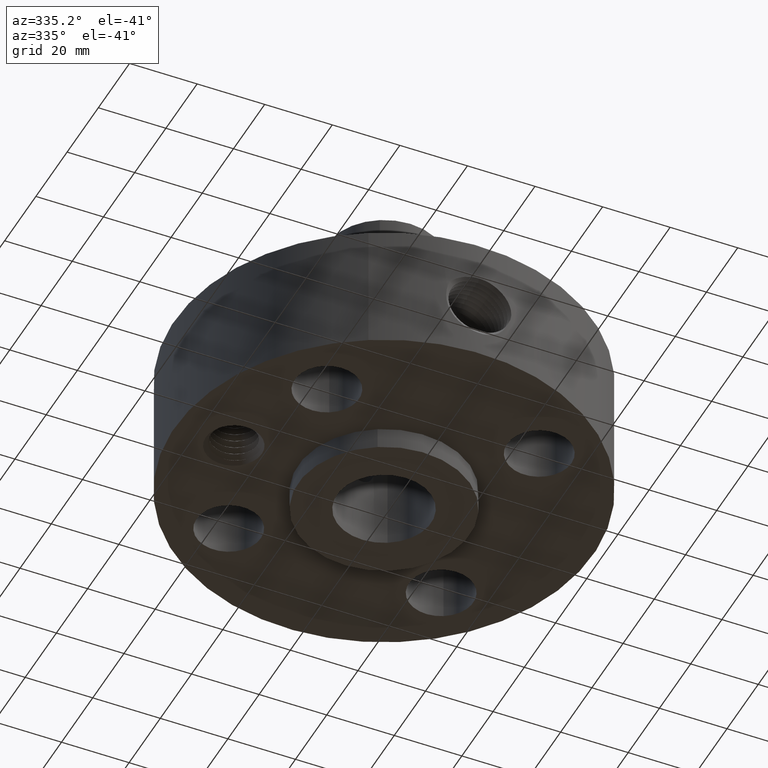
[diagram: clean part render]
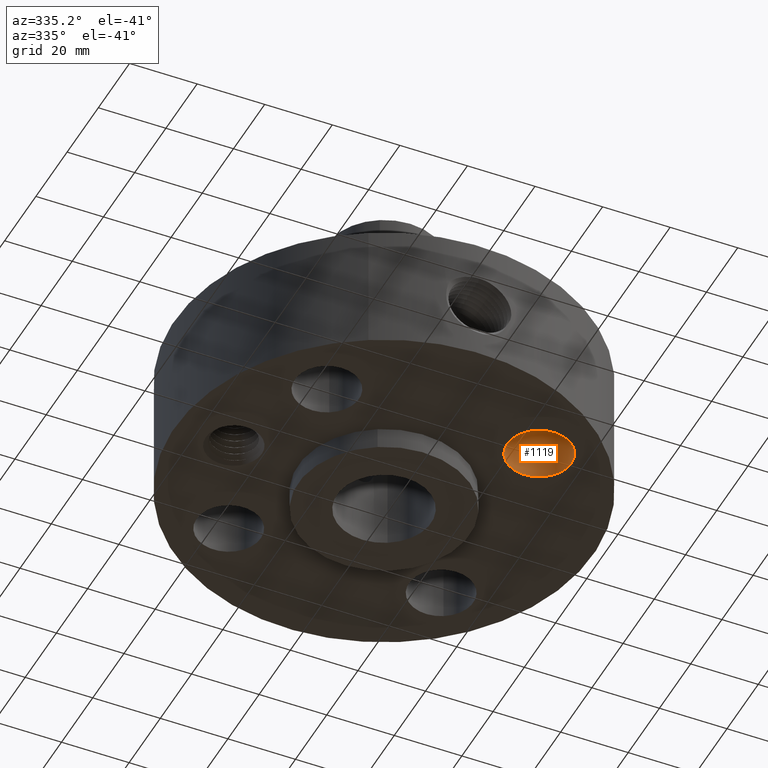
[diagram: same view with one face highlighted and labeled with its STEP entity id]
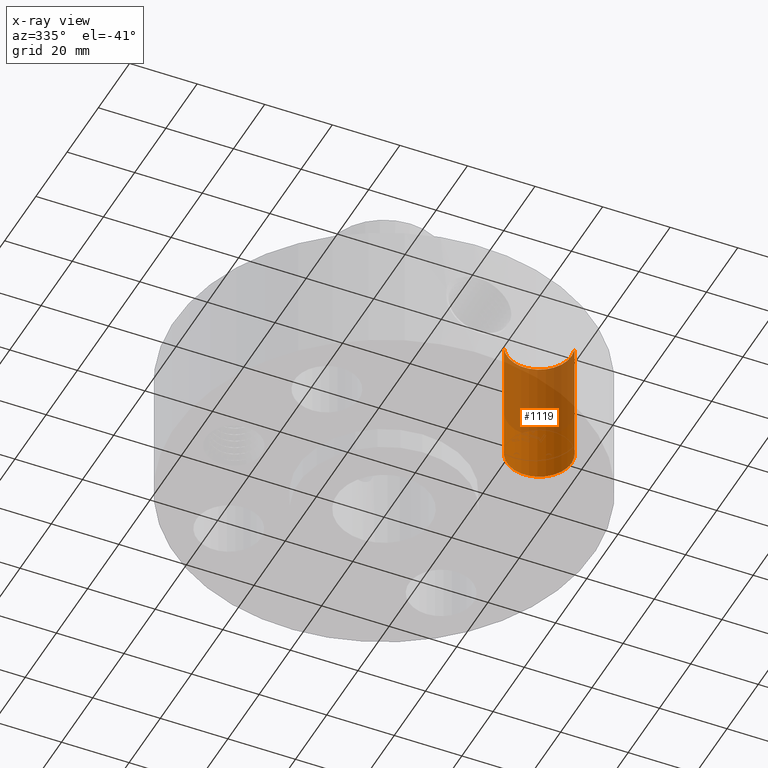
[diagram: x-ray of the same camera — body ghosted, the highlighted face saturated]
A machine part, auxiliary view. The second image highlights one B-rep face of the part: STEP entity #1119.
The next image is the same camera in x-ray: the body ghosted, the highlighted face saturated — about 60% of this face is hidden behind the body in this view.
In plain terms, the highlighted cylindrical surface (edge-blend (fillet) strip) has radius 9.525 mm, axis along (0, -0, -1).
Its self-contained STEP definition (entity closure, byte-faithful):
#236=AXIS2_PLACEMENT_3D('Circle Axis2P3D',#234,#235,$) ;
#475=AXIS2_PLACEMENT_3D('Circle Axis2P3D',#473,#474,$) ;
#1094=AXIS2_PLACEMENT_3D('Cylinder Axis2P3D',#1091,#1092,#1093) ;
#229=CARTESIAN_POINT('Vertex',(1.56653032779,-1.41722144406,0.250000000001)) ;
#231=CARTESIAN_POINT('Vertex',(0.908343406371,-1.0576522901,0.250000000001)) ;
#234=CARTESIAN_POINT('Axis2P3D Location',(1.23743686708,-1.23743686708,0.250000000001)) ;
#473=CARTESIAN_POINT('Axis2P3D Location',(1.23743686708,-1.23743686708,1.75000000001)) ;
#477=CARTESIAN_POINT('Vertex',(0.908343406371,-1.0576522901,1.75000000001)) ;
#479=CARTESIAN_POINT('Vertex',(1.56653032779,-1.41722144406,1.75000000001)) ;
#1091=CARTESIAN_POINT('Axis2P3D Location',(1.23743686708,-1.23743686708,1.74606299213)) ;
#1096=CARTESIAN_POINT('Line Origine',(1.56653032779,-1.41722144406,1.)) ;
#1101=CARTESIAN_POINT('Line Origine',(0.908343406371,-1.0576522901,1.)) ;
#235=DIRECTION('Axis2P3D Direction',(0.,0.,-0.0393700787402)) ;
#474=DIRECTION('Axis2P3D Direction',(0.,0.,-0.0393700787402)) ;
#1092=DIRECTION('Axis2P3D Direction',(0.,-0.,-0.0393700787402)) ;
#1093=DIRECTION('Axis2P3D XDirection',(-0.0345504945626,0.0188750212049,0.)) ;
#1097=DIRECTION('Vector Direction',(0.,0.,-0.0393700787402)) ;
#1102=DIRECTION('Vector Direction',(0.,0.,-0.0393700787402)) ;
#1098=VECTOR('Line Direction',#1097,0.0393700787402) ;
#1103=VECTOR('Line Direction',#1102,0.0393700787402) ;
#1114=ORIENTED_EDGE('',*,*,#1105,.F.) ;
#1115=ORIENTED_EDGE('',*,*,#238,.T.) ;
#1116=ORIENTED_EDGE('',*,*,#1100,.T.) ;
#1117=ORIENTED_EDGE('',*,*,#481,.F.) ;
#1119=ADVANCED_FACE('PartBody',(#1118),#1095,.F.) ;
#237=CIRCLE('generated circle',#236,0.375000000001) ;
#476=CIRCLE('generated circle',#475,0.375000000001) ;
#1095=CYLINDRICAL_SURFACE('generated cylinder',#1094,0.375000000001) ;
#238=EDGE_CURVE('',#232,#230,#237,.T.) ;
#481=EDGE_CURVE('',#478,#480,#476,.T.) ;
#1100=EDGE_CURVE('',#230,#480,#1099,.F.) ;
#1105=EDGE_CURVE('',#232,#478,#1104,.F.) ;
#1113=EDGE_LOOP('',(#1114,#1115,#1116,#1117)) ;
#1118=FACE_OUTER_BOUND('',#1113,.T.) ;
#1099=LINE('Line',#1096,#1098) ;
#1104=LINE('Line',#1101,#1103) ;
#230=VERTEX_POINT('',#229) ;
#232=VERTEX_POINT('',#231) ;
#478=VERTEX_POINT('',#477) ;
#480=VERTEX_POINT('',#479) ;